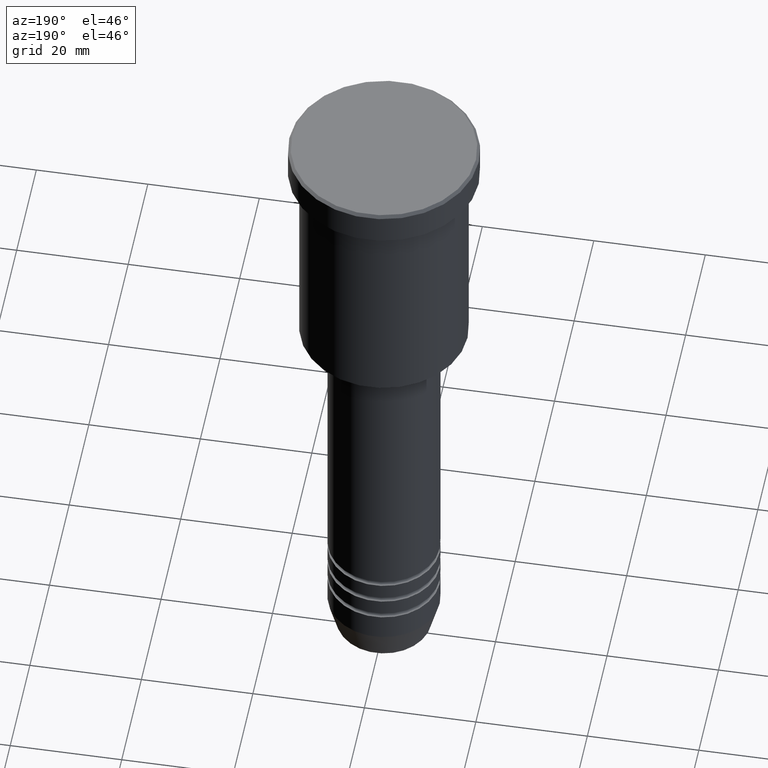
[diagram: clean part render]
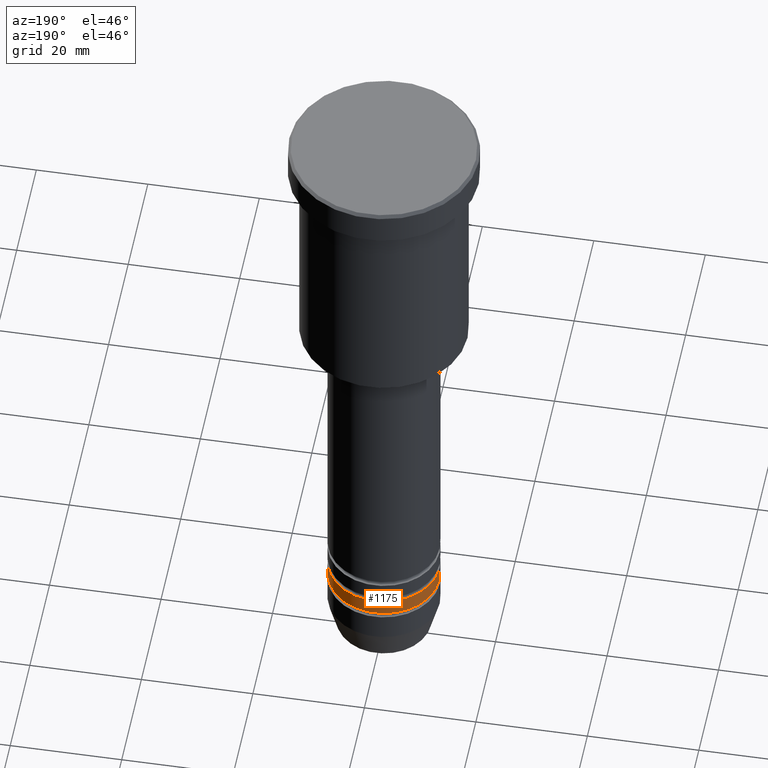
[diagram: same view with one face highlighted and labeled with its STEP entity id]
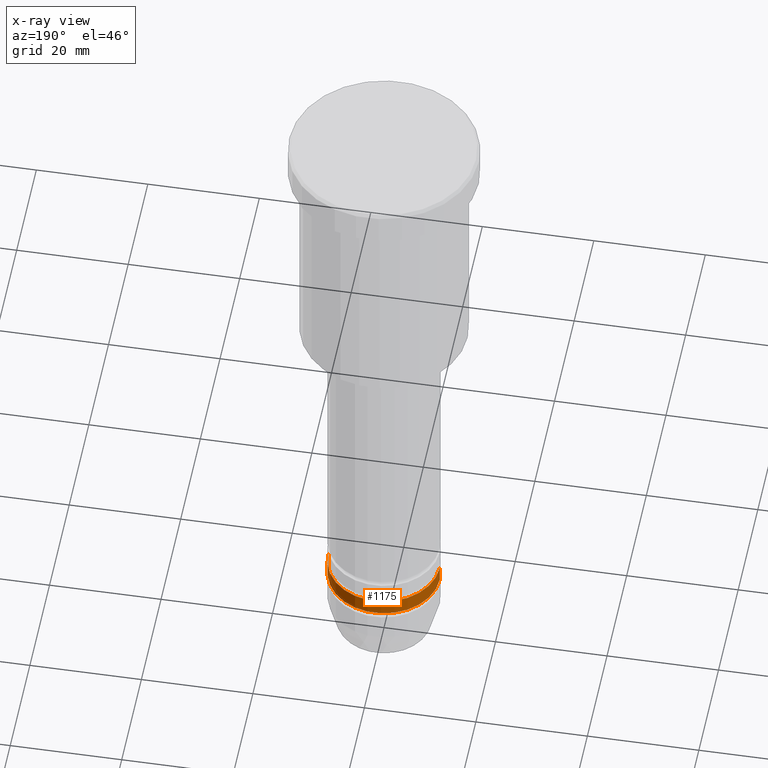
[diagram: x-ray of the same camera — body ghosted, the highlighted face saturated]
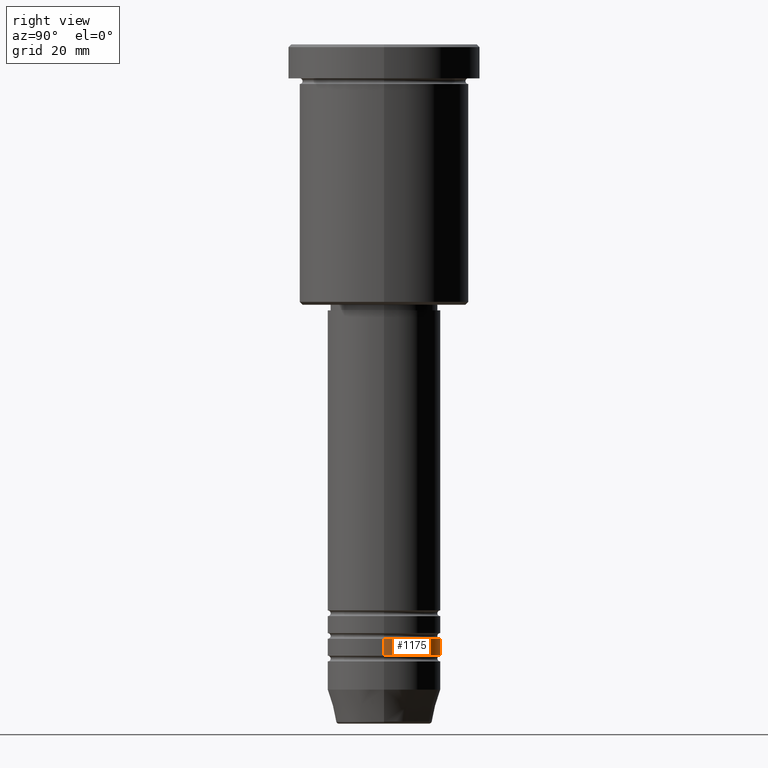
[diagram: same view with one face highlighted and labeled with its STEP entity id]
A machine part, auxiliary view. The second image highlights one B-rep face of the part: STEP entity #1175.
The next image is the same camera in x-ray: the body ghosted, the highlighted face saturated — about 0% of this face is hidden behind the body in this view.
A second angle (right view) of the same face is appended — the face is thin or edge-on in the first view.
In plain terms, the highlighted cylindrical surface (partial cylindrical patch) has radius 10 mm, axis along (-0, -0, 1).
Its self-contained STEP definition (entity closure, byte-faithful):
#64 = DIRECTION ( 'NONE',  ( 1.000000000000000000, 0.000000000000000000, 0.000000000000000000 ) ) ;
#74 = EDGE_CURVE ( 'NONE', #1136, #1045, #237, .T. ) ;
#102 = LINE ( 'NONE', #648, #1067 ) ;
#131 = FACE_OUTER_BOUND ( 'NONE', #490, .T. ) ;
#142 = ORIENTED_EDGE ( 'NONE', *, *, #994, .F. ) ;
#218 = CARTESIAN_POINT ( 'NONE',  ( -10.00000000000000000, 1.224646799147353256E-15, -104.9999999999999858 ) ) ;
#236 = DIRECTION ( 'NONE',  ( 1.000000000000000000, 0.000000000000000000, 0.000000000000000000 ) ) ;
#237 = LINE ( 'NONE', #496, #1165 ) ;
#265 = ORIENTED_EDGE ( 'NONE', *, *, #356, .F. ) ;
#272 = CIRCLE ( 'NONE', #566, 10.00000000000000000 ) ;
#328 = CARTESIAN_POINT ( 'NONE',  ( -10.00000000000000178, 1.224646799147353454E-15, -107.9999999999999716 ) ) ;
#338 = ORIENTED_EDGE ( 'NONE', *, *, #74, .T. ) ;
#352 = VERTEX_POINT ( 'NONE', #445 ) ;
#356 = EDGE_CURVE ( 'NONE', #352, #1045, #272, .T. ) ;
#364 = DIRECTION ( 'NONE',  ( 1.000000000000000000, 0.000000000000000000, 0.000000000000000000 ) ) ;
#403 = DIRECTION ( 'NONE',  ( -0.000000000000000000, -0.000000000000000000, 1.000000000000000000 ) ) ;
#405 = AXIS2_PLACEMENT_3D ( 'NONE', #899, #403, #236 ) ;
#445 = CARTESIAN_POINT ( 'NONE',  ( 10.00000000000000000, 0.000000000000000000, -104.9999999999999858 ) ) ;
#476 = CIRCLE ( 'NONE', #839, 10.00000000000000178 ) ;
#490 = EDGE_LOOP ( 'NONE', ( #945, #338, #265, #142 ) ) ;
#496 = CARTESIAN_POINT ( 'NONE',  ( -10.00000000000000178, 1.224646799147353454E-15, 0.000000000000000000 ) ) ;
#511 = DIRECTION ( 'NONE',  ( -0.000000000000000000, -0.000000000000000000, 1.000000000000000000 ) ) ;
#566 = AXIS2_PLACEMENT_3D ( 'NONE', #823, #1171, #364 ) ;
#604 = CYLINDRICAL_SURFACE ( 'NONE', #405, 10.00000000000000178 ) ;
#622 = VERTEX_POINT ( 'NONE', #932 ) ;
#648 = CARTESIAN_POINT ( 'NONE',  ( 10.00000000000000178, 0.000000000000000000, 0.000000000000000000 ) ) ;
#750 = DIRECTION ( 'NONE',  ( -0.000000000000000000, -0.000000000000000000, 1.000000000000000000 ) ) ;
#802 = CARTESIAN_POINT ( 'NONE',  ( 0.000000000000000000, 0.000000000000000000, -107.9999999999999716 ) ) ;
#823 = CARTESIAN_POINT ( 'NONE',  ( 0.000000000000000000, 0.000000000000000000, -104.9999999999999858 ) ) ;
#839 = AXIS2_PLACEMENT_3D ( 'NONE', #802, #511, #64 ) ;
#867 = DIRECTION ( 'NONE',  ( -0.000000000000000000, -0.000000000000000000, 1.000000000000000000 ) ) ;
#899 = CARTESIAN_POINT ( 'NONE',  ( 0.000000000000000000, 0.000000000000000000, 0.000000000000000000 ) ) ;
#932 = CARTESIAN_POINT ( 'NONE',  ( 10.00000000000000178, 0.000000000000000000, -107.9999999999999716 ) ) ;
#945 = ORIENTED_EDGE ( 'NONE', *, *, #1137, .T. ) ;
#994 = EDGE_CURVE ( 'NONE', #622, #352, #102, .T. ) ;
#1045 = VERTEX_POINT ( 'NONE', #218 ) ;
#1067 = VECTOR ( 'NONE', #867, 1000.000000000000000 ) ;
#1136 = VERTEX_POINT ( 'NONE', #328 ) ;
#1137 = EDGE_CURVE ( 'NONE', #622, #1136, #476, .T. ) ;
#1165 = VECTOR ( 'NONE', #750, 1000.000000000000000 ) ;
#1171 = DIRECTION ( 'NONE',  ( -0.000000000000000000, -0.000000000000000000, 1.000000000000000000 ) ) ;
#1175 = ADVANCED_FACE ( 'NONE', ( #131 ), #604, .T. ) ;